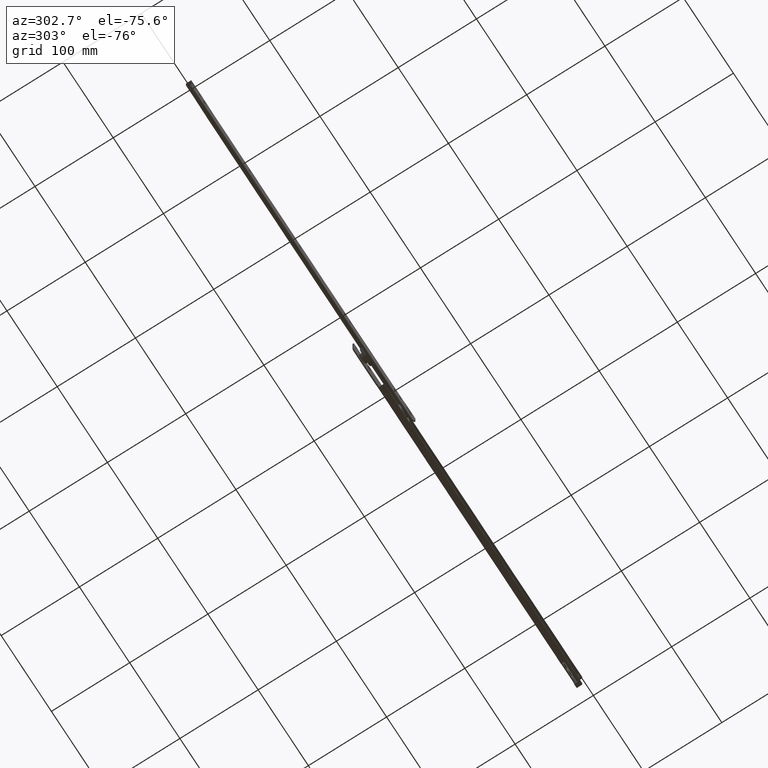
[diagram: clean part render]
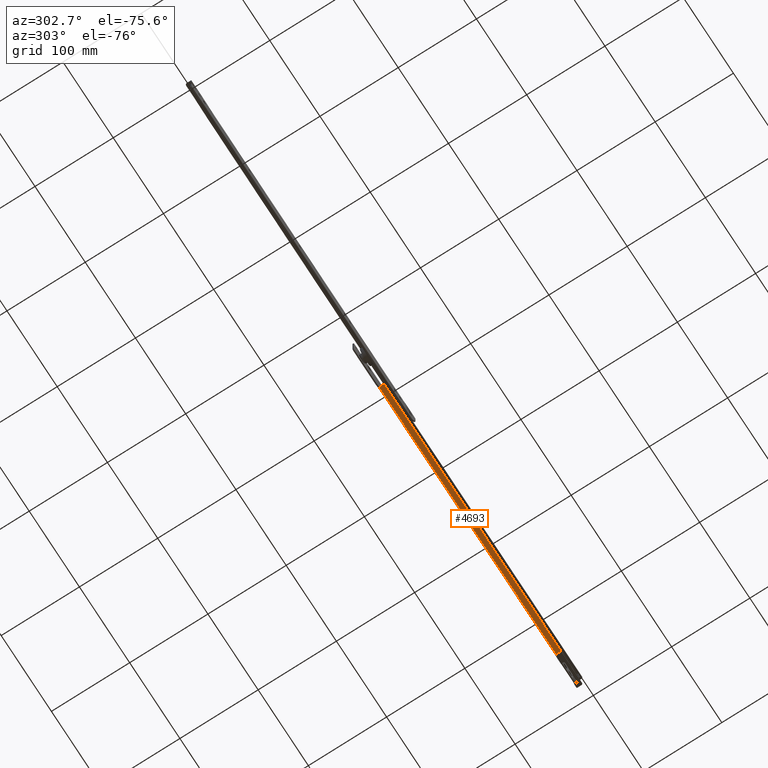
[diagram: same view with one face highlighted and labeled with its STEP entity id]
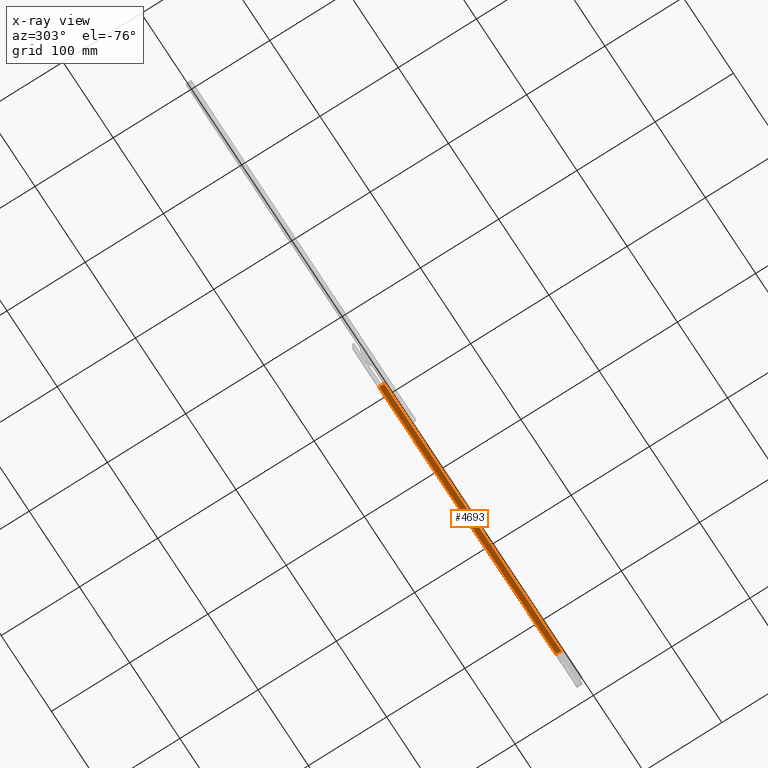
[diagram: x-ray of the same camera — body ghosted, the highlighted face saturated]
A machine part, auxiliary view. The second image highlights one B-rep face of the part: STEP entity #4693.
The next image is the same camera in x-ray: the body ghosted, the highlighted face saturated — about 0% of this face is hidden behind the body in this view.
In plain terms, the highlighted face is a freeform B-spline surface patch.
Its self-contained STEP definition (entity closure, byte-faithful):
#2593=CARTESIAN_POINT('',(107.0,4.499999999999775,1.500000000000000));
#2594=VERTEX_POINT('',#2593);
#2595=CARTESIAN_POINT('',(105.500000000000000,5.999999999999780,1.500000000000000));
#2596=VERTEX_POINT('',#2595);
#2597=CARTESIAN_POINT('',(107.0,4.499999999999781,1.500000000000000));
#2598=CARTESIAN_POINT('',(105.500000000000000,4.499999999999781,1.500000000000000));
#2599=CARTESIAN_POINT('',(105.500000000000000,5.999999999999780,1.500000000000000));
#2607=(BOUNDED_CURVE()B_SPLINE_CURVE(2,(#2597,#2598,#2599),.UNSPECIFIED.,.F.,.U.)CURVE()GEOMETRIC_REPRESENTATION_ITEM()QUASI_UNIFORM_CURVE()RATIONAL_B_SPLINE_CURVE((1.0,0.707106781186548,1.0))REPRESENTATION_ITEM(''));
#2608=EDGE_CURVE('',#2594,#2596,#2607,.T.);
#2956=CARTESIAN_POINT('',(105.500000000000000,11.0,1.500000000000000));
#2957=VERTEX_POINT('',#2956);
#2958=CARTESIAN_POINT('',(105.500000000000000,11.0,1.500000000000000));
#2959=CARTESIAN_POINT('',(105.500000000000000,5.999999999999780,1.500000000000000));
#2960=QUASI_UNIFORM_CURVE('',1,(#2958,#2959),.UNSPECIFIED.,.F.,.U.);
#2961=EDGE_CURVE('',#2957,#2596,#2960,.T.);
#3548=CARTESIAN_POINT('',(458.0,10.999999999999680,1.500000000000000));
#3549=VERTEX_POINT('',#3548);
#3563=CARTESIAN_POINT('',(105.500000000000000,11.0,1.500000000000000));
#3564=CARTESIAN_POINT('',(458.0,10.999999999999680,1.500000000000000));
#3565=QUASI_UNIFORM_CURVE('',1,(#3563,#3564),.UNSPECIFIED.,.F.,.U.);
#3566=EDGE_CURVE('',#2957,#3549,#3565,.T.);
#4570=CARTESIAN_POINT('',(458.0,4.499999999999725,1.500000000000000));
#4571=VERTEX_POINT('',#4570);
#4572=CARTESIAN_POINT('',(458.0,4.499999999999725,1.500000000000000));
#4573=CARTESIAN_POINT('',(107.0,4.499999999999775,1.500000000000000));
#4574=QUASI_UNIFORM_CURVE('',1,(#4572,#4573),.UNSPECIFIED.,.F.,.U.);
#4575=EDGE_CURVE('',#4571,#2594,#4574,.T.);
#4677=CARTESIAN_POINT('',(475.607374316786720,4.175325012597972,1.500000000000000));
#4678=CARTESIAN_POINT('',(87.892616228426618,4.175325012597972,1.500000000000000));
#4679=CARTESIAN_POINT('',(475.607374316786720,11.324675161745340,1.500000000000000));
#4680=CARTESIAN_POINT('',(87.892616228426618,11.324675161745340,1.500000000000000));
#4681=B_SPLINE_SURFACE_WITH_KNOTS('',1,1,((#4677,#4679),(#4678,#4680)),.UNSPECIFIED.,.F.,.F.,.U.,(2,2),(2,2),(0.0,387.714758088360100),(0.0,7.149350149147366),.UNSPECIFIED.);
#4682=ORIENTED_EDGE('',*,*,#4575,.T.);
#4683=ORIENTED_EDGE('',*,*,#2608,.T.);
#4684=ORIENTED_EDGE('',*,*,#2961,.F.);
#4685=ORIENTED_EDGE('',*,*,#3566,.T.);
#4686=CARTESIAN_POINT('',(458.0,4.499999999999725,1.500000000000000));
#4687=CARTESIAN_POINT('',(458.0,10.999999999999680,1.500000000000000));
#4688=QUASI_UNIFORM_CURVE('',1,(#4686,#4687),.UNSPECIFIED.,.F.,.U.);
#4689=EDGE_CURVE('',#4571,#3549,#4688,.T.);
#4690=ORIENTED_EDGE('',*,*,#4689,.F.);
#4691=EDGE_LOOP('',(#4682,#4683,#4684,#4685,#4690));
#4692=FACE_OUTER_BOUND('',#4691,.T.);
#4693=ADVANCED_FACE('',(#4692),#4681,.T.);